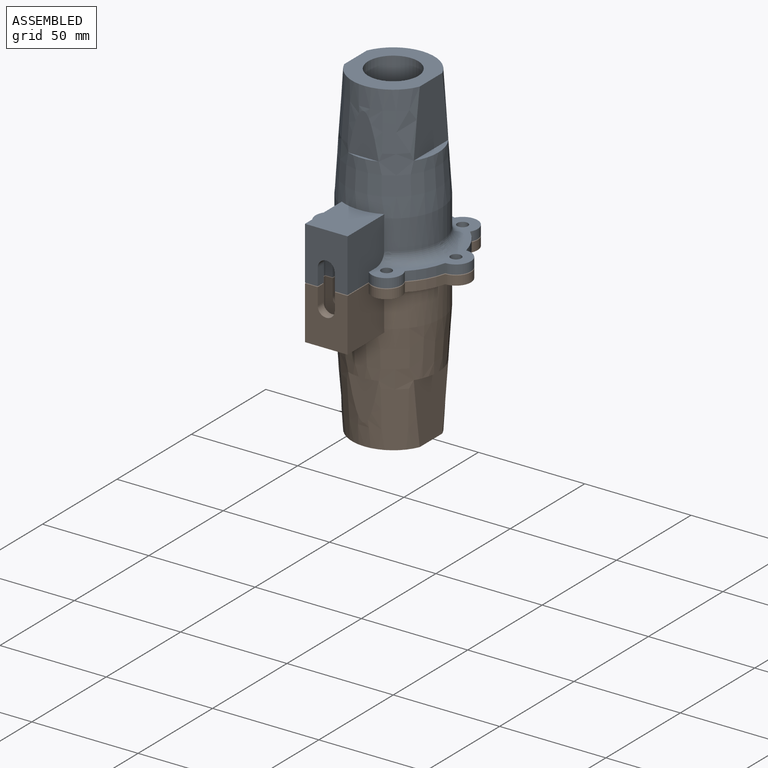
[diagram: assembled view]
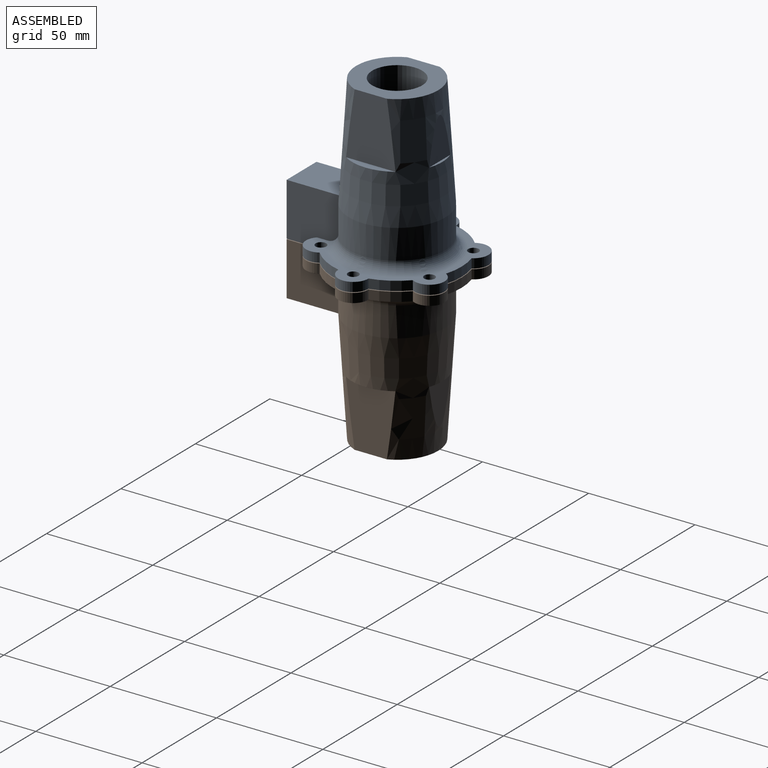
[diagram: assembled view, second angle]
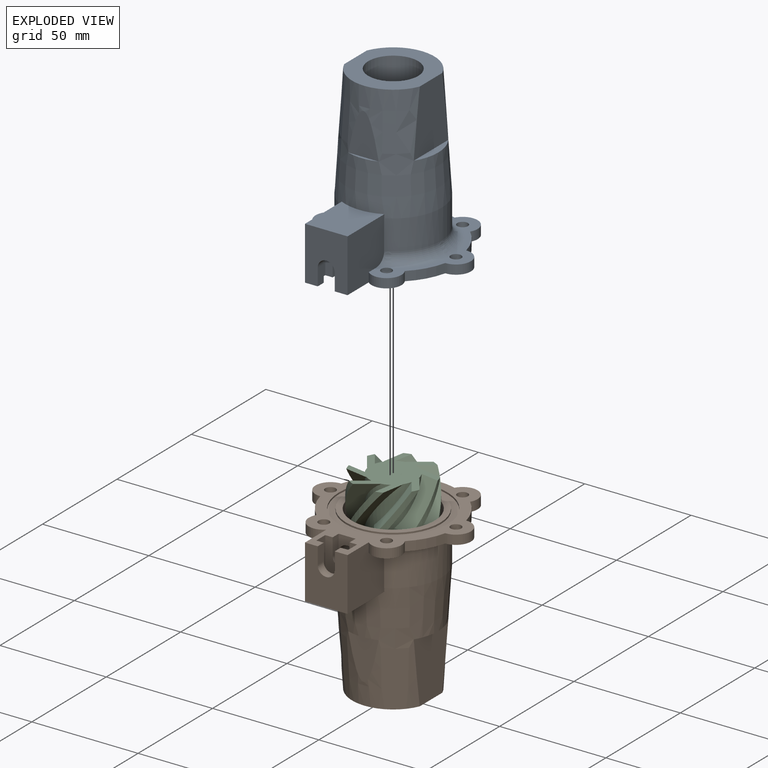
[diagram: exploded view]
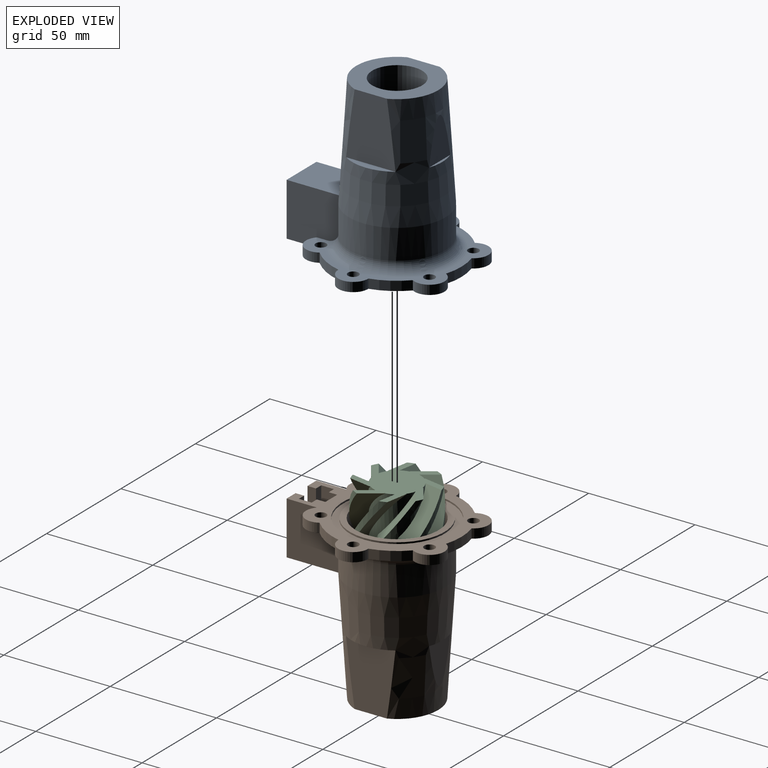
[diagram: exploded view, second angle]
ASSEMBLY  parts=3 mates=2
PART A: 103 faces, bbox 73.1x78.8x76.5 mm
  f0: plane 44.56x44.56mm, normal (0,0,-1), area 364.9mm2, adj f10,f87
  f1: plane 8x4mm, normal (-1,0,0), area 32mm2, adj f3,f31,f80,f81
  f2: plane 8x4mm, normal (-1,0,0), area 32mm2, adj f4,f31,f77,f82
  f3: cylinder r=4mm len=12mm, axis (0,-1,0), area 251.3mm2, adj f1,f5,f80,f81,f86
  f4: cylinder r=4mm len=8mm, axis (0,-1,0), area 50.3mm2, adj f2,f6,f77,f82
  f5: plane 8x4mm, normal (1,0,0), area 32mm2, adj f3,f31,f80,f81
  f6: plane 8x4mm, normal (1,0,0), area 32mm2, adj f4,f31,f77,f82
  f7: cylinder r=7.04mm len=11.78mm, axis (0,0,-1), area 87.2mm2, adj f14,f30,f31,f78
  f8: plane 38.68x35.56mm, normal (0,0,1), area 709.4mm2, adj f9,f33,f69,f73
  f9: cone r=22.71mm half-angle=3.6deg, axis (0,0,-1), area 5403.9mm2, adj f8,f32,f68,f69,f70,f71,f72,f73
  f10: cylinder r=19.5mm len=39mm, axis (0,0,-1), area 3153.9mm2, adj f0,f11,f34,f35,f36,f37,f38,f43
  f11: cone r=11.75mm half-angle=16.8deg, axis (0,0,-1), area 2200.3mm2, adj f10,f33,f43,f44,f46,f47,f48,f50
  f12: cylinder r=8.5mm len=17mm, axis (0,0,1), area 580.1mm2, adj f13,f34,f35,f36,f37,f38,f39,f43
  f13: torus R=3.5mm, axis (0,0,-1), area 172.3mm2, adj f12,f40,f43,f44,f45,f47,f48,f49
  f14: cylinder r=30.23mm len=14.89mm, axis (0,0,-1), area 75.9mm2, adj f7,f15,f30,f31
  f15: cylinder r=7.04mm len=14.09mm, axis (0,0,-1), area 97.2mm2, adj f14,f16,f30,f31
  f16: cylinder r=30.23mm len=14.89mm, axis (0,0,-1), area 75.9mm2, adj f15,f17,f30,f31
  f17: cylinder r=7.04mm len=13.2mm, axis (0,0,-1), area 97.2mm2, adj f16,f18,f30,f31
  f18: cylinder r=30.23mm len=17.2mm, axis (0,0,-1), area 75.9mm2, adj f17,f19,f30,f31
  f19: cylinder r=7.04mm len=13.2mm, axis (0,0,-1), area 97.2mm2, adj f18,f20,f30,f31
  f20: cylinder r=30.23mm len=14.89mm, axis (0,0,-1), area 75.9mm2, adj f19,f21,f30,f31
  f21: cylinder r=7.04mm len=14.09mm, axis (0,0,-1), area 97.2mm2, adj f20,f22,f30,f31
  f22: cylinder r=30.23mm len=14.89mm, axis (0,0,-1), area 75.9mm2, adj f21,f23,f30,f31
  f23: cylinder r=7.04mm len=11.78mm, axis (0,0,-1), area 87.2mm2, adj f22,f30,f31,f76
  f24: cylinder r=2.5mm len=5mm, axis (0,0,-1), area 68.3mm2, adj f30,f31,f99
  f25: cylinder r=2.5mm len=5mm, axis (0,0,-1), area 68.3mm2, adj f30,f31,f97
  f26: cylinder r=2.5mm len=5mm, axis (0,0,-1), area 68.3mm2, adj f30,f31,f95
  f27: cylinder r=2.5mm len=5mm, axis (0,0,-1), area 68.3mm2, adj f30,f31,f93
  f28: cylinder r=2.5mm len=5mm, axis (0,0,-1), area 68.3mm2, adj f30,f31,f91
  f29: cylinder r=2.5mm len=5mm, axis (0,0,-1), area 68.3mm2, adj f30,f31,f101
  f30: plane 73.09x65.19mm, normal (0,0,1), area 725.2mm2, adj f7,f14,f15,f16,f17,f18,f19,f20
  f31: plane 77.59x73.09mm, normal (0,0,-1), area 1289.3mm2, adj f1,f2,f5,f6,f7,f14,f15,f16
  f32: cylinder r=22.71mm len=45.42mm, axis (0,0,-1), area 1705.2mm2, adj f9,f76,f78,f90,f91,f92,f93,f94
  f33: cylinder r=11.75mm len=23.5mm, axis (0,0,-1), area 1636mm2, adj f8,f11
  f34: plane 11.13x3.39mm, normal (0,0,-1), area 26.9mm2, adj f10,f12,f43,f44
  f35: plane 10.96x6.84mm, normal (0,0,-1), area 26.9mm2, adj f10,f12,f47,f48
  f36: plane 10.38x8.28mm, normal (0,0,-1), area 26.9mm2, adj f10,f12,f51,f52
  f37: plane 11.13x3.39mm, normal (0,0,-1), area 26.9mm2, adj f10,f12,f55,f56
  f38: plane 10.96x6.84mm, normal (0,0,-1), area 26.9mm2, adj f10,f12,f59,f60
  f39: plane 17x17mm, normal (0,0,-1), area 151.9mm2, adj f12,f41
  f40: cone r=8.5mm half-angle=43.3deg, axis (0,0,-1), area 233.5mm2, adj f13
  f41: cylinder r=4.89mm len=15mm, axis (0,0,-1), area 460.9mm2, adj f39,f42
  f42: plane 9.78x9.78mm, normal (0,0,-1), area 75.1mm2, adj f41
  f43: plane 42.69x11.27mm, normal (-0.98,-0.17,0), area 378.9mm2, adj f10,f11,f12,f13,f34,f45,f46
  f44: plane 42.69x11.44mm, normal (1,0,0), area 378.9mm2, adj f10,f11,f12,f13,f34,f45,f46
  f45: cylinder r=8.06mm len=23.64mm, axis (0,0,-1), area 33.3mm2, adj f13,f43,f44,f46
  f46: cone r=8.06mm half-angle=43.4deg, axis (0,0,1), area 9.8mm2, adj f11,f43,f44,f45
  f47: plane 42.69x10.75mm, normal (-0.34,-0.94,0), area 378.9mm2, adj f10,f11,f12,f13,f35,f49,f50
  f48: plane 42.69x9.91mm, normal (0.5,0.87,0), area 378.9mm2, adj f10,f11,f12,f13,f35,f49,f50
  f49: cylinder r=8.06mm len=23.64mm, axis (0,0,-1), area 33.3mm2, adj f13,f47,f48,f50
  f50: cone r=8.06mm half-angle=43.4deg, axis (0,0,1), area 9.8mm2, adj f11,f47,f48,f49
  f51: plane 42.69x8.76mm, normal (0.64,-0.77,0), area 378.9mm2, adj f10,f11,f12,f13,f36,f53,f54
  f52: plane 42.69x9.91mm, normal (-0.5,0.87,0), area 378.9mm2, adj f10,f11,f12,f13,f36,f53,f54
  f53: cylinder r=8.06mm len=23.64mm, axis (0,0,-1), area 33.3mm2, adj f13,f51,f52,f54
  f54: cone r=8.06mm half-angle=43.4deg, axis (0,0,1), area 9.8mm2, adj f11,f51,f52,f53
  f55: plane 42.69x11.27mm, normal (0.98,0.17,0), area 378.9mm2, adj f10,f11,f12,f13,f37,f57,f58
  f56: plane 42.69x11.44mm, normal (-1,0,0), area 378.9mm2, adj f10,f11,f12,f13,f37,f57,f58
  f57: cylinder r=8.06mm len=23.64mm, axis (0,0,-1), area 33.3mm2, adj f13,f55,f56,f58
  f58: cone r=8.06mm half-angle=43.4deg, axis (0,0,1), area 9.8mm2, adj f11,f55,f56,f57
  f59: plane 42.69x10.75mm, normal (0.34,0.94,0), area 378.9mm2, adj f10,f11,f12,f13,f38,f61,f62
  f60: plane 42.69x9.91mm, normal (-0.5,-0.87,0), area 378.9mm2, adj f10,f11,f12,f13,f38,f61,f62
  f61: cylinder r=8.06mm len=23.64mm, axis (0,0,-1), area 33.3mm2, adj f13,f59,f60,f62
  f62: cone r=8.06mm half-angle=43.4deg, axis (0,0,1), area 9.8mm2, adj f11,f59,f60,f61
  f63: plane 10.38x8.28mm, normal (0,0,-1), area 26.9mm2, adj f10,f12,f64,f65
  f64: plane 42.69x8.76mm, normal (-0.64,0.77,0), area 378.9mm2, adj f10,f11,f12,f13,f63,f66,f67
  f65: plane 42.69x9.91mm, normal (0.5,-0.87,0), area 378.9mm2, adj f10,f11,f12,f13,f63,f66,f67
  f66: cylinder r=8.06mm len=23.64mm, axis (0,0,-1), area 33.3mm2, adj f13,f64,f65,f67
  f67: cone r=8.06mm half-angle=43.4deg, axis (0,0,1), area 9.8mm2, adj f11,f64,f65,f66
  f68: plane 23.25x3.46mm, normal (0,0,1), area 54.6mm2, adj f9,f69
  f69: plane 30.01x23.25mm, normal (1,0,0), area 583.6mm2, adj f8,f9,f68
  f70: plane 14.31x1.24mm, normal (0,0,1), area 11.9mm2, adj f9,f71
  f71: plane 19.59x14.32mm, normal (0,1,0), area 186.1mm2, adj f9,f70
  f72: plane 23.25x3.46mm, normal (0,0,1), area 54.6mm2, adj f9,f73
  f73: plane 30.01x23.25mm, normal (-1,0,0), area 583.6mm2, adj f8,f9,f72
  f74: plane 14.31x1.24mm, normal (0,0,1), area 11.9mm2, adj f9,f75
  f75: plane 19.59x14.32mm, normal (0,-1,0), area 186.1mm2, adj f9,f74
  f76: plane 25x24.73mm, normal (-1,0,0), area 564.4mm2, adj f9,f23,f30,f31,f32,f77,f79,f90
  f77: plane 25x20.02mm, normal (0,-1,0), area 411.4mm2, adj f2,f4,f6,f31,f76,f78,f79
  f78: plane 25x24.73mm, normal (1,0,0), area 564.4mm2, adj f7,f9,f30,f31,f32,f77,f79,f102
  f79: plane 24.73x20.02mm, normal (0,0,1), area 463.7mm2, adj f9,f76,f77,f78
  f80: plane 8x8mm, normal (0,-1,0), area 38.9mm2, adj f1,f3,f5,f31
  f81: plane 17.7x15mm, normal (0,-1,0), area 176.4mm2, adj f1,f3,f5,f31,f83,f84,f85
  f82: plane 17.7x15mm, normal (0,1,0), area 176.4mm2, adj f2,f4,f6,f31,f83,f84,f85
  f83: plane 17.7x6mm, normal (-1,0,0), area 106.2mm2, adj f31,f81,f82,f85
  f84: plane 17.7x6mm, normal (1,0,0), area 106.2mm2, adj f31,f81,f82,f85
  f85: plane 15x6mm, normal (0,0,-1), area 90mm2, adj f81,f82,f83,f84
  f86: plane 8x8mm, normal (0,-1,0), area 50.3mm2, adj f3
  f87: cylinder r=22.28mm len=44.56mm, axis (0,0,-1), area 105mm2, adj f0,f89
  f88: cylinder r=25.5mm len=51mm, axis (0,0,-1), area 120.2mm2, adj f31,f89
  f89: plane 51x51mm, normal (0,0,-1), area 483.3mm2, adj f87,f88
  f90: torus R=27.71mm, axis (0,0,1), area 8.1mm2, adj f30,f32,f76,f91
  f91: bspline ~6.1x5.46mm, area 21.9mm2, adj f28,f32,f90,f92
  f92: torus R=27.71mm, axis (0,0,1), area 178.2mm2, adj f30,f32,f91,f93
  f93: bspline ~5.12x5.12mm, area 21.9mm2, adj f27,f32,f92,f94
  f94: torus R=27.71mm, axis (0,0,1), area 178.2mm2, adj f30,f32,f93,f95
  f95: bspline ~6.08x5.44mm, area 21.9mm2, adj f26,f32,f94,f96
  f96: torus R=27.71mm, axis (0,0,1), area 178.2mm2, adj f30,f32,f95,f97
  f97: bspline ~6.1x5.46mm, area 21.9mm2, adj f25,f32,f96,f98
  f98: torus R=27.71mm, axis (0,0,1), area 178.2mm2, adj f30,f32,f97,f99
  f99: bspline ~5.12x5.12mm, area 21.9mm2, adj f24,f32,f98,f100
  f100: torus R=27.71mm, axis (0,0,1), area 178.2mm2, adj f30,f32,f99,f101
  f101: bspline ~6.08x5.44mm, area 21.9mm2, adj f29,f32,f100,f102
  f102: torus R=27.71mm, axis (0,0,1), area 8.1mm2, adj f30,f32,f78,f101
PART B: same geometry as A
PART C: 50 faces, bbox 37x37x25 mm
  f0: plane 36.2x36.2mm, normal (0,0,1), area 610.4mm2, adj f1,f2,f4,f5,f7,f8,f10,f11
  f1: plane 18.34x14.51mm, normal (-0.78,0,0.62), area 184.2mm2, adj f0,f3,f26,f49
  f2: plane 25x19.54mm, normal (0.79,0,-0.62), area 263.5mm2, adj f0,f3,f32,f34,f49
  f3: plane 11.32x6.66mm, normal (-0.96,0,0.29), area 65.8mm2, adj f1,f2,f26,f49
  f4: plane 18.34x16.6mm, normal (-0.55,-0.55,0.62), area 184.2mm2, adj f0,f6,f32,f48
  f5: plane 25x21.53mm, normal (0.56,0.56,-0.62), area 263.5mm2, adj f0,f6,f31,f35,f48
  f6: plane 9.44x7.27mm, normal (-0.68,-0.68,0.29), area 65.8mm2, adj f4,f5,f32,f48
  f7: plane 18.34x14.51mm, normal (0,-0.78,0.62), area 184.2mm2, adj f0,f9,f31,f47
  f8: plane 25x19.54mm, normal (0,0.79,-0.62), area 263.5mm2, adj f0,f9,f30,f36,f47
  f9: plane 11.32x6.66mm, normal (0,-0.96,0.29), area 65.8mm2, adj f7,f8,f31,f47
  f10: plane 18.34x16.6mm, normal (0.55,-0.55,0.62), area 184.2mm2, adj f0,f12,f30,f46
  f11: plane 25x21.53mm, normal (-0.56,0.56,-0.62), area 263.5mm2, adj f0,f12,f29,f37,f46
  f12: plane 9.44x7.27mm, normal (0.68,-0.68,0.29), area 65.8mm2, adj f10,f11,f30,f46
  f13: plane 18.34x14.51mm, normal (0.78,0,0.62), area 184.2mm2, adj f0,f15,f29,f45
  f14: plane 25x19.54mm, normal (-0.79,0,-0.62), area 263.5mm2, adj f0,f15,f28,f38,f45
  f15: plane 11.32x6.66mm, normal (0.96,0,0.29), area 65.8mm2, adj f13,f14,f29,f45
  f16: plane 18.34x16.6mm, normal (0.55,0.55,0.62), area 184.2mm2, adj f0,f18,f28,f44
  f17: plane 25x21.53mm, normal (-0.56,-0.56,-0.62), area 263.5mm2, adj f0,f18,f27,f39,f44
  f18: plane 9.44x7.27mm, normal (0.68,0.68,0.29), area 65.8mm2, adj f16,f17,f28,f44
  f19: plane 18.34x14.51mm, normal (0,0.78,0.62), area 184.2mm2, adj f0,f21,f27,f43
  f20: plane 25x19.54mm, normal (0,-0.79,-0.62), area 263.5mm2, adj f0,f21,f25,f40,f43
  f21: plane 11.32x6.66mm, normal (0,0.96,0.29), area 65.8mm2, adj f19,f20,f27,f43
  f22: plane 18.34x16.6mm, normal (-0.55,0.55,0.62), area 184.2mm2, adj f0,f24,f25,f42
  f23: plane 25x21.53mm, normal (0.56,-0.56,-0.62), area 263.5mm2, adj f0,f24,f26,f41,f42
  f24: plane 9.44x7.27mm, normal (-0.68,0.68,0.29), area 65.8mm2, adj f22,f23,f25,f42
  f25: cylinder r=11mm len=25mm, axis (0,0,-1), area 138.6mm2, adj f0,f20,f22,f24,f33,f40
  f26: cylinder r=11mm len=25mm, axis (0,0,-1), area 138.6mm2, adj f0,f1,f3,f23,f33,f41
  f27: cylinder r=11mm len=25mm, axis (0,0,-1), area 138.6mm2, adj f0,f17,f19,f21,f33,f39
  f28: cylinder r=11mm len=25mm, axis (0,0,-1), area 138.6mm2, adj f0,f14,f16,f18,f33,f38
  f29: cylinder r=11mm len=25mm, axis (0,0,-1), area 138.6mm2, adj f0,f11,f13,f15,f33,f37
  f30: cylinder r=11mm len=25mm, axis (0,0,-1), area 138.6mm2, adj f0,f8,f10,f12,f33,f36
  f31: cylinder r=11mm len=25mm, axis (0,0,-1), area 138.6mm2, adj f0,f5,f7,f9,f33,f35
  f32: cylinder r=11mm len=25mm, axis (0,0,-1), area 138.6mm2, adj f0,f2,f4,f6,f33,f34
  f33: plane 22x22mm, normal (0,0,-1), area 380.1mm2, adj f25,f26,f27,f28,f29,f30,f31,f32
  f34: plane 0.37x0.29mm, normal (0,1,0), area 0.1mm2, adj f0,f2,f32
  f35: plane 0.37x0.21mm, normal (-0.71,0.71,0), area 0.1mm2, adj f0,f5,f31
  f36: plane 0.37x0.29mm, normal (-1,0,0), area 0.1mm2, adj f0,f8,f30
  f37: plane 0.37x0.21mm, normal (-0.71,-0.71,0), area 0.1mm2, adj f0,f11,f29
  f38: plane 0.37x0.29mm, normal (0,-1,0), area 0.1mm2, adj f0,f14,f28
  f39: plane 0.37x0.21mm, normal (0.71,-0.71,0), area 0.1mm2, adj f0,f17,f27
  f40: plane 0.37x0.29mm, normal (1,0,0), area 0.1mm2, adj f0,f20,f25
  f41: plane 0.37x0.21mm, normal (0.71,0.71,0), area 0.1mm2, adj f0,f23,f26
  f42: cylinder r=18.5mm len=25mm, axis (0,0,1), area 69.9mm2, adj f0,f22,f23,f24
  f43: cylinder r=18.5mm len=25mm, axis (0,0,1), area 69.9mm2, adj f0,f19,f20,f21
  f44: cylinder r=18.5mm len=25mm, axis (0,0,1), area 69.9mm2, adj f0,f16,f17,f18
  f45: cylinder r=18.5mm len=25mm, axis (0,0,1), area 69.9mm2, adj f0,f13,f14,f15
  f46: cylinder r=18.5mm len=25mm, axis (0,0,1), area 69.9mm2, adj f0,f10,f11,f12
  f47: cylinder r=18.5mm len=25mm, axis (0,0,1), area 69.9mm2, adj f0,f7,f8,f9
  f48: cylinder r=18.5mm len=25mm, axis (0,0,1), area 69.9mm2, adj f0,f4,f5,f6
  f49: cylinder r=18.5mm len=25mm, axis (0,0,1), area 69.9mm2, adj f0,f1,f2,f3
PLACE A t=(0,0,-76.49)mm
PLACE B rot(axis=(0,1,0),180deg) t=(0,0,-76.79)mm
PLACE C rot(axis=(0,0,1),170deg) t=(0,0,-90.49)mm
MATE slider B.f7 <-> A.f23  axis (0,0,1) through (-14.75,-25.55,-76.79)mm
MATE revolute C.f25 <-> A.f41  axis (0,0,1) through (0,0,-65.49)mm
